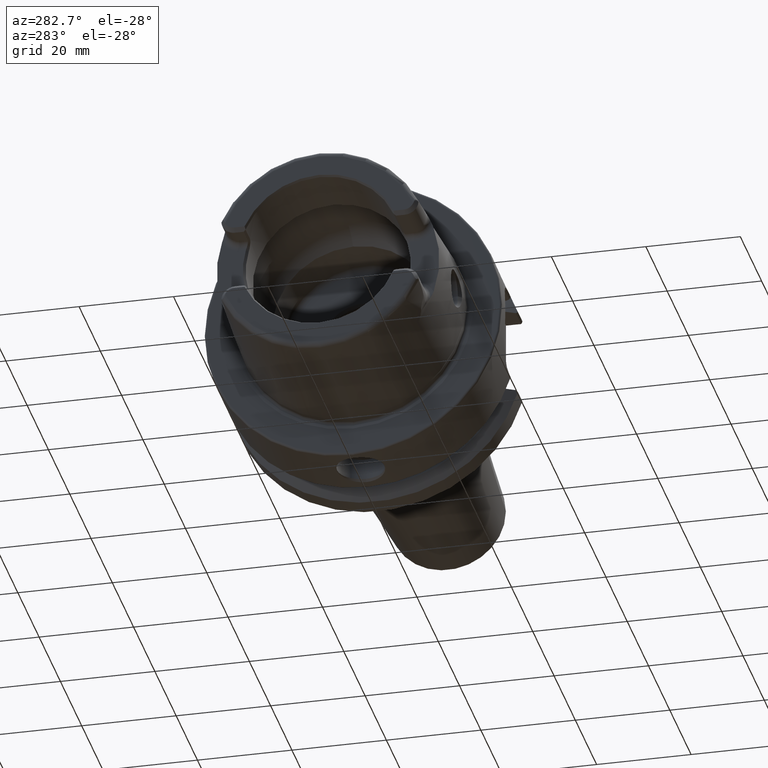
[diagram: clean part render]
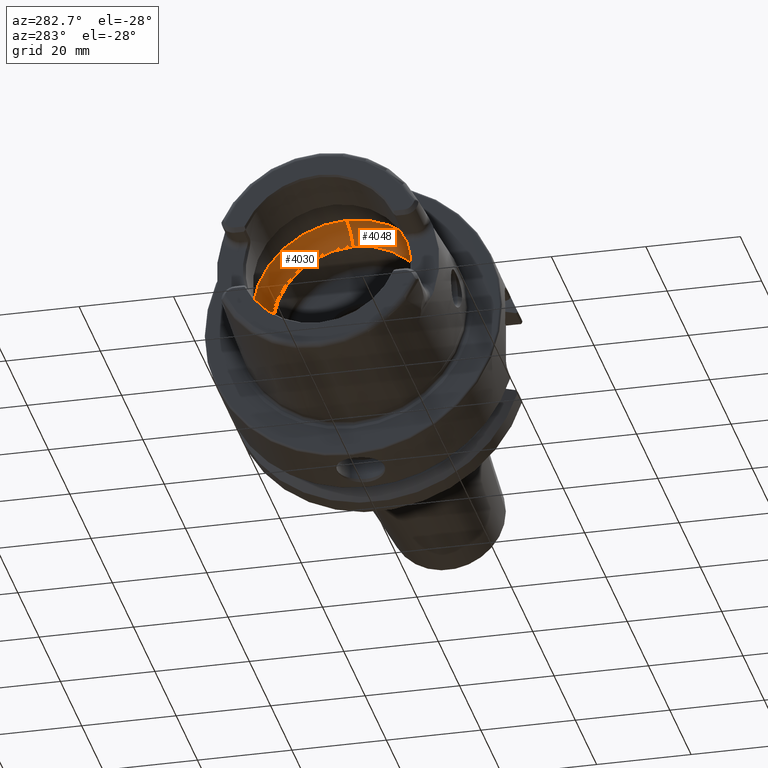
[diagram: same view with one multi-face feature highlighted, each face labeled with its STEP entity id]
A machine part, auxiliary view. The highlighted faces form ONE feature: a constant-radius fillet chain: 2 tangent blend faces with common blend radius 8.2014 mm. The faces share edges in the B-rep.
Their STEP definitions:
[1] entity #4048 (Torus):
#760=CARTESIAN_POINT('',(-2.460629921260E-1,-7.809777292935E-1,
-1.003743998739E-1));
#761=CARTESIAN_POINT('',(-2.402005167606E-1,-7.817904500629E-1,
-9.405090681336E-2));
#762=CARTESIAN_POINT('',(-2.292385755286E-1,-7.831163765237E-1,
-8.004374264075E-2));
#763=CARTESIAN_POINT('',(-2.160709145005E-1,-7.843328059987E-1,
-5.444410052114E-2));
#764=CARTESIAN_POINT('',(-2.082455432069E-1,-7.848949629276E-1,
-2.676616326652E-2));
#765=CARTESIAN_POINT('',(-2.066929133858E-1,-7.849923766583E-1,
-8.793227719460E-3));
#766=CARTESIAN_POINT('',(-2.066929133858E-1,-7.849923766583E-1,0.E0));
#768=CARTESIAN_POINT('',(-2.460629921260E-1,0.E0,-4.645120106011E-1));
#769=DIRECTION('',(0.E0,-1.E0,0.E0));
#770=DIRECTION('',(0.E0,0.E0,-1.E0));
#771=AXIS2_PLACEMENT_3D('',#768,#769,#770);
#773=CARTESIAN_POINT('',(0.E0,0.E0,0.E0));
#774=DIRECTION('',(1.E0,0.E0,0.E0));
#775=DIRECTION('',(0.E0,0.E0,1.E0));
#776=AXIS2_PLACEMENT_3D('',#773,#774,#775);
#778=CARTESIAN_POINT('',(-2.460629921260E-1,0.E0,4.645120106011E-1));
#779=DIRECTION('',(0.E0,-1.E0,0.E0));
#780=DIRECTION('',(7.620654936134E-1,0.E0,6.474999486052E-1));
#781=AXIS2_PLACEMENT_3D('',#778,#779,#780);
#783=CARTESIAN_POINT('',(-2.066929133858E-1,-7.849923766583E-1,0.E0));
#784=CARTESIAN_POINT('',(-2.066929133858E-1,-7.849923766583E-1,
8.917205662986E-3));
#785=CARTESIAN_POINT('',(-2.082950968867E-1,-7.848918185505E-1,
2.705640292416E-2));
#786=CARTESIAN_POINT('',(-2.161565827517E-1,-7.843256986775E-1,
5.463510373136E-2));
#787=CARTESIAN_POINT('',(-2.292881132747E-1,-7.831106111666E-1,
8.010902370640E-2));
#788=CARTESIAN_POINT('',(-2.402178728203E-1,-7.817880439752E-1,
9.406962773180E-2));
#789=CARTESIAN_POINT('',(-2.460629921260E-1,-7.809777292935E-1,
1.003743998739E-1));
#805=CARTESIAN_POINT('',(-2.460629921260E-1,-7.809777292935E-1,
-1.003743998739E-1));
#807=CARTESIAN_POINT('',(-2.460629921260E-1,-7.809777292935E-1,
1.003743998739E-1));
#823=CARTESIAN_POINT('',(-2.460629921260E-1,0.E0,0.E0));
#824=DIRECTION('',(1.E0,0.E0,0.E0));
#825=DIRECTION('',(0.E0,0.E0,1.E0));
#826=AXIS2_PLACEMENT_3D('',#823,#824,#825);
#836=CARTESIAN_POINT('',(-2.460629921260E-1,0.E0,0.E0));
#837=DIRECTION('',(1.E0,0.E0,0.E0));
#838=DIRECTION('',(0.E0,-9.918417211620E-1,-1.274754884772E-1));
#839=AXIS2_PLACEMENT_3D('',#836,#837,#838);
#2771=CARTESIAN_POINT('',(-2.460629921260E-1,0.E0,-7.874015708661E-1));
#2772=VERTEX_POINT('',#2771);
#2773=CARTESIAN_POINT('',(-2.460629921260E-1,0.E0,7.874015708661E-1));
#2774=VERTEX_POINT('',#2773);
#3022=VERTEX_POINT('',#805);
#3023=VERTEX_POINT('',#807);
#3025=VERTEX_POINT('',#766);
#3158=CARTESIAN_POINT('',(0.E0,0.E0,-6.735829842779E-1));
#3159=CARTESIAN_POINT('',(0.E0,0.E0,6.735829842779E-1));
#3160=VERTEX_POINT('',#3158);
#3161=VERTEX_POINT('',#3159);
#4031=CARTESIAN_POINT('',(-2.460629921260E-1,0.E0,0.E0));
#4032=DIRECTION('',(1.E0,0.E0,0.E0));
#4033=DIRECTION('',(0.E0,0.E0,1.E0));
#4034=AXIS2_PLACEMENT_3D('',#4031,#4032,#4033);
#4035=TOROIDAL_SURFACE('',#4034,4.645120106011E-1,3.228895602650E-1);
#4036=ORIENTED_EDGE('',*,*,#3949,.F.);
#4038=ORIENTED_EDGE('',*,*,#4037,.T.);
#4039=ORIENTED_EDGE('',*,*,#4025,.T.);
#4041=ORIENTED_EDGE('',*,*,#4040,.F.);
#4042=ORIENTED_EDGE('',*,*,#4021,.T.);
#4044=ORIENTED_EDGE('',*,*,#4043,.T.);
#4045=ORIENTED_EDGE('',*,*,#4005,.F.);
#4046=EDGE_LOOP('',(#4036,#4038,#4039,#4041,#4042,#4044,#4045));
#4047=FACE_OUTER_BOUND('',#4046,.F.);
#4048=ADVANCED_FACE('',(#4047),#4035,.F.);
#767=B_SPLINE_CURVE_WITH_KNOTS('',3,(#760,#761,#762,#763,#764,#765,#766),
.UNSPECIFIED.,.F.,.F.,(4,1,1,1,4),(0.E0,2.5E-1,5.E-1,7.5E-1,1.E0),
.UNSPECIFIED.);
#772=CIRCLE('',#771,3.228895602650E-1);
#777=CIRCLE('',#776,6.735829842779E-1);
#782=CIRCLE('',#781,3.228895602650E-1);
#790=B_SPLINE_CURVE_WITH_KNOTS('',3,(#783,#784,#785,#786,#787,#788,#789),
.UNSPECIFIED.,.F.,.F.,(4,1,1,1,4),(0.E0,2.5E-1,5.E-1,7.5E-1,1.E0),
.UNSPECIFIED.);
#827=CIRCLE('',#826,7.874015708661E-1);
#840=CIRCLE('',#839,7.874015708661E-1);
#3949=EDGE_CURVE('',#3022,#3025,#767,.T.);
#4005=EDGE_CURVE('',#3025,#3023,#790,.T.);
#4021=EDGE_CURVE('',#3161,#2774,#782,.T.);
#4025=EDGE_CURVE('',#2772,#3160,#772,.T.);
#4037=EDGE_CURVE('',#3022,#2772,#840,.T.);
#4040=EDGE_CURVE('',#3161,#3160,#777,.T.);
#4043=EDGE_CURVE('',#2774,#3023,#827,.T.);
[2] entity #4030 (Torus):
#653=CARTESIAN_POINT('',(-2.460629921260E-1,7.809777292935E-1,
-1.003743998739E-1));
#669=CARTESIAN_POINT('',(-2.460629921260E-1,0.E0,0.E0));
#670=DIRECTION('',(1.E0,0.E0,0.E0));
#671=DIRECTION('',(0.E0,0.E0,-1.E0));
#672=AXIS2_PLACEMENT_3D('',#669,#670,#671);
#674=CARTESIAN_POINT('',(-2.460629921260E-1,0.E0,0.E0));
#675=DIRECTION('',(1.E0,0.E0,0.E0));
#676=DIRECTION('',(0.E0,9.918417211620E-1,1.274754884772E-1));
#677=AXIS2_PLACEMENT_3D('',#674,#675,#676);
#693=CARTESIAN_POINT('',(-2.460629921260E-1,7.809777292935E-1,
1.003743998739E-1));
#739=CARTESIAN_POINT('',(-2.066929133858E-1,7.849923766583E-1,0.E0));
#740=CARTESIAN_POINT('',(-2.066929133858E-1,7.849923766583E-1,
-8.793227719460E-3));
#741=CARTESIAN_POINT('',(-2.082455432069E-1,7.848949629276E-1,
-2.676616326652E-2));
#742=CARTESIAN_POINT('',(-2.160709145005E-1,7.843328059987E-1,
-5.444410052114E-2));
#743=CARTESIAN_POINT('',(-2.292385755286E-1,7.831163765237E-1,
-8.004374264075E-2));
#744=CARTESIAN_POINT('',(-2.402005167606E-1,7.817904500629E-1,
-9.405090681336E-2));
#745=CARTESIAN_POINT('',(-2.460629921260E-1,7.809777292935E-1,
-1.003743998739E-1));
#747=CARTESIAN_POINT('',(-2.460629921260E-1,7.809777292935E-1,
1.003743998739E-1));
#748=CARTESIAN_POINT('',(-2.402178728203E-1,7.817880439752E-1,
9.406962773180E-2));
#749=CARTESIAN_POINT('',(-2.292881132747E-1,7.831106111666E-1,
8.010902370640E-2));
#750=CARTESIAN_POINT('',(-2.161565827517E-1,7.843256986775E-1,
5.463510373136E-2));
#751=CARTESIAN_POINT('',(-2.082950968867E-1,7.848918185505E-1,
2.705640292416E-2));
#752=CARTESIAN_POINT('',(-2.066929133858E-1,7.849923766583E-1,
8.917205662986E-3));
#753=CARTESIAN_POINT('',(-2.066929133858E-1,7.849923766583E-1,0.E0));
#755=CARTESIAN_POINT('',(0.E0,0.E0,0.E0));
#756=DIRECTION('',(1.E0,0.E0,0.E0));
#757=DIRECTION('',(0.E0,0.E0,-1.E0));
#758=AXIS2_PLACEMENT_3D('',#755,#756,#757);
#768=CARTESIAN_POINT('',(-2.460629921260E-1,0.E0,-4.645120106011E-1));
#769=DIRECTION('',(0.E0,-1.E0,0.E0));
#770=DIRECTION('',(0.E0,0.E0,-1.E0));
#771=AXIS2_PLACEMENT_3D('',#768,#769,#770);
#778=CARTESIAN_POINT('',(-2.460629921260E-1,0.E0,4.645120106011E-1));
#779=DIRECTION('',(0.E0,-1.E0,0.E0));
#780=DIRECTION('',(7.620654936134E-1,0.E0,6.474999486052E-1));
#781=AXIS2_PLACEMENT_3D('',#778,#779,#780);
#2771=CARTESIAN_POINT('',(-2.460629921260E-1,0.E0,-7.874015708661E-1));
#2772=VERTEX_POINT('',#2771);
#2773=CARTESIAN_POINT('',(-2.460629921260E-1,0.E0,7.874015708661E-1));
#2774=VERTEX_POINT('',#2773);
#3018=VERTEX_POINT('',#653);
#3020=VERTEX_POINT('',#693);
#3024=VERTEX_POINT('',#739);
#3158=CARTESIAN_POINT('',(0.E0,0.E0,-6.735829842779E-1));
#3159=CARTESIAN_POINT('',(0.E0,0.E0,6.735829842779E-1));
#3160=VERTEX_POINT('',#3158);
#3161=VERTEX_POINT('',#3159);
#4013=CARTESIAN_POINT('',(-2.460629921260E-1,0.E0,0.E0));
#4014=DIRECTION('',(1.E0,0.E0,0.E0));
#4015=DIRECTION('',(0.E0,0.E0,1.E0));
#4016=AXIS2_PLACEMENT_3D('',#4013,#4014,#4015);
#4017=TOROIDAL_SURFACE('',#4016,4.645120106011E-1,3.228895602650E-1);
#4018=ORIENTED_EDGE('',*,*,#3930,.F.);
#4019=ORIENTED_EDGE('',*,*,#3991,.F.);
#4020=ORIENTED_EDGE('',*,*,#3914,.T.);
#4022=ORIENTED_EDGE('',*,*,#4021,.F.);
#4024=ORIENTED_EDGE('',*,*,#4023,.F.);
#4026=ORIENTED_EDGE('',*,*,#4025,.F.);
#4027=ORIENTED_EDGE('',*,*,#3907,.T.);
#4028=EDGE_LOOP('',(#4018,#4019,#4020,#4022,#4024,#4026,#4027));
#4029=FACE_OUTER_BOUND('',#4028,.F.);
#4030=ADVANCED_FACE('',(#4029),#4017,.F.);
#673=CIRCLE('',#672,7.874015708661E-1);
#678=CIRCLE('',#677,7.874015708661E-1);
#746=B_SPLINE_CURVE_WITH_KNOTS('',3,(#739,#740,#741,#742,#743,#744,#745),
.UNSPECIFIED.,.F.,.F.,(4,1,1,1,4),(0.E0,2.5E-1,5.E-1,7.5E-1,1.E0),
.UNSPECIFIED.);
#754=B_SPLINE_CURVE_WITH_KNOTS('',3,(#747,#748,#749,#750,#751,#752,#753),
.UNSPECIFIED.,.F.,.F.,(4,1,1,1,4),(0.E0,2.5E-1,5.E-1,7.5E-1,1.E0),
.UNSPECIFIED.);
#759=CIRCLE('',#758,6.735829842779E-1);
#772=CIRCLE('',#771,3.228895602650E-1);
#782=CIRCLE('',#781,3.228895602650E-1);
#3907=EDGE_CURVE('',#2772,#3018,#673,.T.);
#3914=EDGE_CURVE('',#3020,#2774,#678,.T.);
#3930=EDGE_CURVE('',#3024,#3018,#746,.T.);
#3991=EDGE_CURVE('',#3020,#3024,#754,.T.);
#4021=EDGE_CURVE('',#3161,#2774,#782,.T.);
#4023=EDGE_CURVE('',#3160,#3161,#759,.T.);
#4025=EDGE_CURVE('',#2772,#3160,#772,.T.);